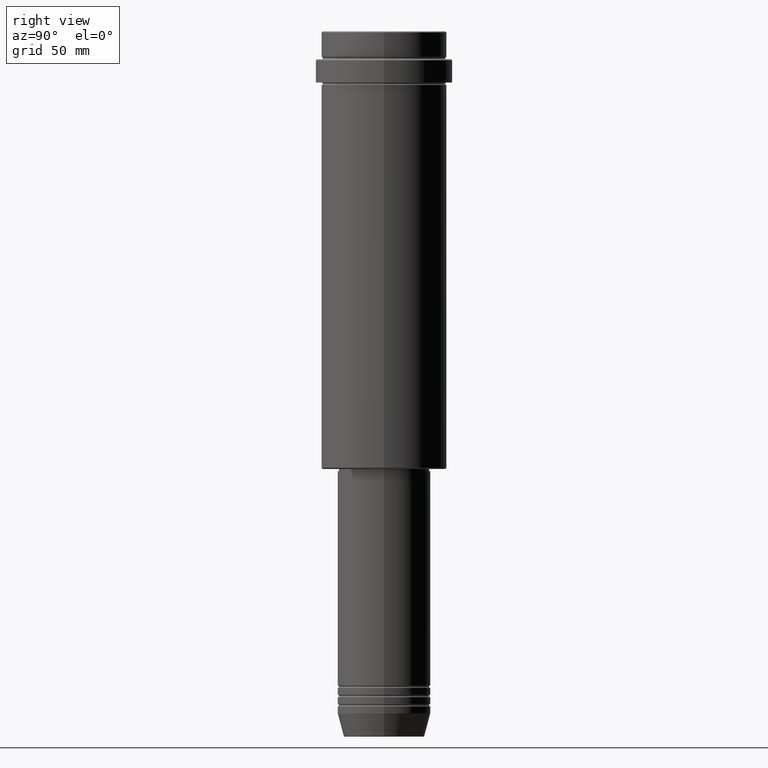
[diagram: clean part render]
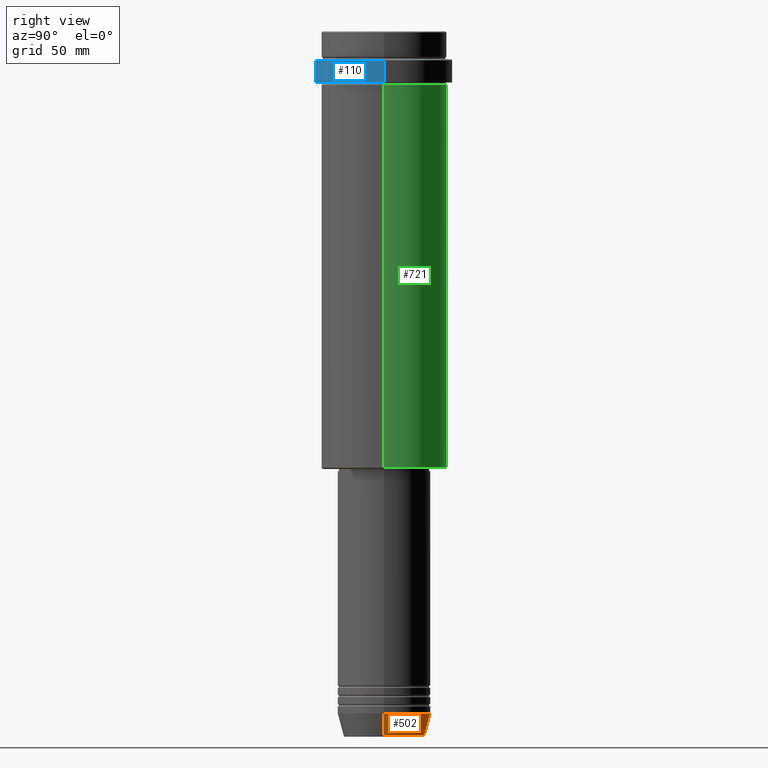
[diagram: same view with three faces highlighted in distinct colors, each labeled with its STEP entity id]
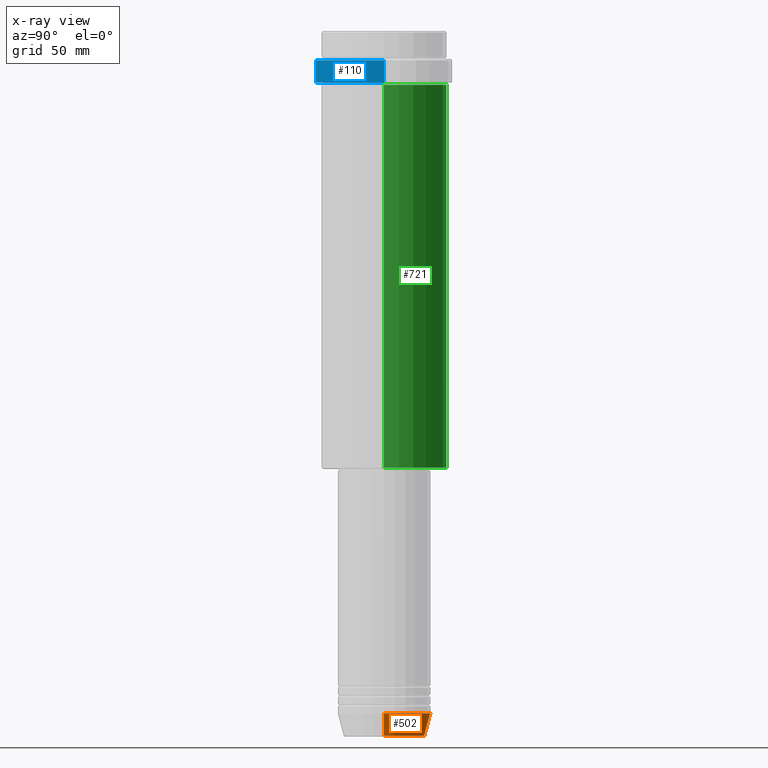
[diagram: x-ray of the same camera — body ghosted, the three highlighted faces saturated]
A machine part, right view with three faces highlighted in distinct colors.
The next image is the same camera in x-ray (body ghosted, the three faces saturated) — at least one of them is partly hidden behind the body in this view.
Their STEP definitions:

[orange] entity #502 — the highlighted conical surface has half-angle 15 deg.
#1 = CARTESIAN_POINT ( 'NONE',  ( -20.00000000000000000, 2.449293598294706513E-15, -293.0000000000000000 ) ) ;
#32 = FACE_OUTER_BOUND ( 'NONE', #483, .T. ) ;
#71 = DIRECTION ( 'NONE',  ( -0.000000000000000000, -0.000000000000000000, 1.000000000000000000 ) ) ;
#131 = ORIENTED_EDGE ( 'NONE', *, *, #1140, .T. ) ;
#153 = CARTESIAN_POINT ( 'NONE',  ( -20.00000000000000000, 2.449293598294706513E-15, -293.0000000000000000 ) ) ;
#157 = CIRCLE ( 'NONE', #1075, 20.00000000000000000 ) ;
#192 = CARTESIAN_POINT ( 'NONE',  ( 0.000000000000000000, 0.000000000000000000, -302.6294095225512137 ) ) ;
#193 = EDGE_CURVE ( 'NONE', #571, #680, #157, .T. ) ;
#228 = CIRCLE ( 'NONE', #1018, 17.41980749484382684 ) ;
#265 = LINE ( 'NONE', #153, #406 ) ;
#275 = LINE ( 'NONE', #823, #551 ) ;
#279 = CONICAL_SURFACE ( 'NONE', #1154, 20.00000000000000000, 0.2617993877991499074 ) ;
#295 = DIRECTION ( 'NONE',  ( 1.000000000000000000, 0.000000000000000000, 0.000000000000000000 ) ) ;
#406 = VECTOR ( 'NONE', #812, 1000.000000000000114 ) ;
#483 = EDGE_LOOP ( 'NONE', ( #131, #1043, #495, #530 ) ) ;
#495 = ORIENTED_EDGE ( 'NONE', *, *, #193, .F. ) ;
#502 = ADVANCED_FACE ( 'NONE', ( #32 ), #279, .T. ) ;
#530 = ORIENTED_EDGE ( 'NONE', *, *, #915, .F. ) ;
#551 = VECTOR ( 'NONE', #1165, 1000.000000000000114 ) ;
#571 = VERTEX_POINT ( 'NONE', #1246 ) ;
#595 = CARTESIAN_POINT ( 'NONE',  ( 17.41980749484382684, 0.000000000000000000, -302.6294095225512137 ) ) ;
#649 = VERTEX_POINT ( 'NONE', #743 ) ;
#680 = VERTEX_POINT ( 'NONE', #1 ) ;
#743 = CARTESIAN_POINT ( 'NONE',  ( -17.41980749484382684, 2.291302373663531915E-15, -302.6294095225512137 ) ) ;
#812 = DIRECTION ( 'NONE',  ( -0.2588190451025211836, 3.169619151431770488E-17, 0.9659258262890680902 ) ) ;
#823 = CARTESIAN_POINT ( 'NONE',  ( 20.00000000000000000, 0.000000000000000000, -293.0000000000000000 ) ) ;
#830 = DIRECTION ( 'NONE',  ( -0.000000000000000000, -0.000000000000000000, 1.000000000000000000 ) ) ;
#913 = CARTESIAN_POINT ( 'NONE',  ( 0.000000000000000000, 0.000000000000000000, -293.0000000000000000 ) ) ;
#915 = EDGE_CURVE ( 'NONE', #981, #571, #275, .T. ) ;
#970 = CARTESIAN_POINT ( 'NONE',  ( 0.000000000000000000, 0.000000000000000000, -293.0000000000000000 ) ) ;
#981 = VERTEX_POINT ( 'NONE', #595 ) ;
#1018 = AXIS2_PLACEMENT_3D ( 'NONE', #192, #830, #295 ) ;
#1043 = ORIENTED_EDGE ( 'NONE', *, *, #1379, .T. ) ;
#1075 = AXIS2_PLACEMENT_3D ( 'NONE', #970, #1079, #1402 ) ;
#1079 = DIRECTION ( 'NONE',  ( -0.000000000000000000, -0.000000000000000000, 1.000000000000000000 ) ) ;
#1135 = DIRECTION ( 'NONE',  ( 1.000000000000000000, 0.000000000000000000, 0.000000000000000000 ) ) ;
#1140 = EDGE_CURVE ( 'NONE', #981, #649, #228, .T. ) ;
#1154 = AXIS2_PLACEMENT_3D ( 'NONE', #913, #71, #1135 ) ;
#1165 = DIRECTION ( 'NONE',  ( 0.2588190451025211836, 0.000000000000000000, 0.9659258262890680902 ) ) ;
#1246 = CARTESIAN_POINT ( 'NONE',  ( 20.00000000000000000, 0.000000000000000000, -293.0000000000000000 ) ) ;
#1379 = EDGE_CURVE ( 'NONE', #649, #680, #265, .T. ) ;
#1402 = DIRECTION ( 'NONE',  ( 1.000000000000000000, 0.000000000000000000, 0.000000000000000000 ) ) ;

[blue] entity #110 — the highlighted cylindrical surface (partial cylindrical patch) has radius 29.5 mm, axis along (-0, -0, 1).
#4 = AXIS2_PLACEMENT_3D ( 'NONE', #148, #1042, #687 ) ;
#73 = VERTEX_POINT ( 'NONE', #969 ) ;
#92 = DIRECTION ( 'NONE',  ( -0.000000000000000000, -0.000000000000000000, 1.000000000000000000 ) ) ;
#101 = FACE_OUTER_BOUND ( 'NONE', #1096, .T. ) ;
#110 = ADVANCED_FACE ( 'NONE', ( #101 ), #982, .T. ) ;
#126 = DIRECTION ( 'NONE',  ( 1.000000000000000000, 0.000000000000000000, 0.000000000000000000 ) ) ;
#148 = CARTESIAN_POINT ( 'NONE',  ( 0.000000000000000000, 0.000000000000000000, -22.00000000000000711 ) ) ;
#186 = CARTESIAN_POINT ( 'NONE',  ( 29.50000000000000000, 0.000000000000000000, -12.49999999999994849 ) ) ;
#222 = DIRECTION ( 'NONE',  ( 1.000000000000000000, 0.000000000000000000, 0.000000000000000000 ) ) ;
#230 = DIRECTION ( 'NONE',  ( 0.000000000000000000, 0.000000000000000000, -1.000000000000000000 ) ) ;
#282 = AXIS2_PLACEMENT_3D ( 'NONE', #1225, #230, #126 ) ;
#289 = ORIENTED_EDGE ( 'NONE', *, *, #1317, .T. ) ;
#307 = ORIENTED_EDGE ( 'NONE', *, *, #1177, .F. ) ;
#393 = VERTEX_POINT ( 'NONE', #833 ) ;
#477 = ORIENTED_EDGE ( 'NONE', *, *, #1337, .T. ) ;
#527 = VECTOR ( 'NONE', #1004, 1000.000000000000000 ) ;
#687 = DIRECTION ( 'NONE',  ( 1.000000000000000000, 0.000000000000000000, 0.000000000000000000 ) ) ;
#754 = CARTESIAN_POINT ( 'NONE',  ( 0.000000000000000000, 0.000000000000000000, 0.000000000000000000 ) ) ;
#801 = CARTESIAN_POINT ( 'NONE',  ( 29.50000000000000000, 0.000000000000000000, 0.000000000000000000 ) ) ;
#833 = CARTESIAN_POINT ( 'NONE',  ( 29.49999999999999645, 0.000000000000000000, -22.00000000000000711 ) ) ;
#953 = ORIENTED_EDGE ( 'NONE', *, *, #1229, .T. ) ;
#958 = AXIS2_PLACEMENT_3D ( 'NONE', #754, #92, #222 ) ;
#965 = CIRCLE ( 'NONE', #282, 29.50000000000000000 ) ;
#969 = CARTESIAN_POINT ( 'NONE',  ( -29.49999999999999645, 3.612708057484690815E-15, -22.00000000000000711 ) ) ;
#982 = CYLINDRICAL_SURFACE ( 'NONE', #958, 29.50000000000000000 ) ;
#1004 = DIRECTION ( 'NONE',  ( -0.000000000000000000, -0.000000000000000000, 1.000000000000000000 ) ) ;
#1042 = DIRECTION ( 'NONE',  ( -0.000000000000000000, -0.000000000000000000, 1.000000000000000000 ) ) ;
#1089 = VERTEX_POINT ( 'NONE', #186 ) ;
#1096 = EDGE_LOOP ( 'NONE', ( #307, #477, #289, #953 ) ) ;
#1113 = LINE ( 'NONE', #1320, #527 ) ;
#1158 = VECTOR ( 'NONE', #1261, 1000.000000000000000 ) ;
#1177 = EDGE_CURVE ( 'NONE', #73, #1251, #1113, .T. ) ;
#1225 = CARTESIAN_POINT ( 'NONE',  ( 0.000000000000000000, 0.000000000000000000, -12.49999999999994849 ) ) ;
#1229 = EDGE_CURVE ( 'NONE', #1089, #1251, #965, .T. ) ;
#1235 = LINE ( 'NONE', #801, #1158 ) ;
#1251 = VERTEX_POINT ( 'NONE', #1343 ) ;
#1261 = DIRECTION ( 'NONE',  ( -0.000000000000000000, -0.000000000000000000, 1.000000000000000000 ) ) ;
#1314 = CIRCLE ( 'NONE', #4, 29.49999999999999645 ) ;
#1317 = EDGE_CURVE ( 'NONE', #393, #1089, #1235, .T. ) ;
#1320 = CARTESIAN_POINT ( 'NONE',  ( -29.50000000000000000, 3.612708057484691604E-15, 0.000000000000000000 ) ) ;
#1337 = EDGE_CURVE ( 'NONE', #73, #393, #1314, .T. ) ;
#1343 = CARTESIAN_POINT ( 'NONE',  ( -29.50000000000000000, 3.612708057484691604E-15, -12.49999999999994849 ) ) ;

[green] entity #721 — the highlighted cylindrical surface (partial cylindrical patch) has radius 27 mm, axis along (-0, -0, 1).
#9 = EDGE_CURVE ( 'NONE', #272, #1048, #648, .T. ) ;
#25 = VECTOR ( 'NONE', #1369, 1000.000000000000000 ) ;
#113 = DIRECTION ( 'NONE',  ( 1.000000000000000000, 0.000000000000000000, 0.000000000000000000 ) ) ;
#129 = VERTEX_POINT ( 'NONE', #1411 ) ;
#145 = DIRECTION ( 'NONE',  ( -0.000000000000000000, -0.000000000000000000, 1.000000000000000000 ) ) ;
#159 = DIRECTION ( 'NONE',  ( -1.000000000000000000, 0.000000000000000000, 0.000000000000000000 ) ) ;
#182 = CYLINDRICAL_SURFACE ( 'NONE', #1308, 27.00000000000000355 ) ;
#272 = VERTEX_POINT ( 'NONE', #531 ) ;
#273 = CARTESIAN_POINT ( 'NONE',  ( -27.00000000000000355, 3.306546357697854128E-15, -187.5000000000000284 ) ) ;
#281 = VECTOR ( 'NONE', #871, 1000.000000000000000 ) ;
#383 = CIRCLE ( 'NONE', #1263, 27.00000000000000355 ) ;
#418 = DIRECTION ( 'NONE',  ( -0.000000000000000000, -0.000000000000000000, 1.000000000000000000 ) ) ;
#440 = ORIENTED_EDGE ( 'NONE', *, *, #597, .F. ) ;
#512 = CARTESIAN_POINT ( 'NONE',  ( 0.000000000000000000, 0.000000000000000000, 0.000000000000000000 ) ) ;
#531 = CARTESIAN_POINT ( 'NONE',  ( 27.00000000000000355, 0.000000000000000000, -187.5000000000000284 ) ) ;
#537 = FACE_OUTER_BOUND ( 'NONE', #746, .T. ) ;
#597 = EDGE_CURVE ( 'NONE', #1048, #129, #383, .T. ) ;
#613 = CARTESIAN_POINT ( 'NONE',  ( 27.00000000000000355, 0.000000000000000000, -23.00000000000001421 ) ) ;
#648 = LINE ( 'NONE', #1327, #281 ) ;
#669 = ORIENTED_EDGE ( 'NONE', *, *, #9, .F. ) ;
#703 = DIRECTION ( 'NONE',  ( -0.000000000000000000, -0.000000000000000000, 1.000000000000000000 ) ) ;
#721 = ADVANCED_FACE ( 'NONE', ( #537 ), #182, .T. ) ;
#746 = EDGE_LOOP ( 'NONE', ( #858, #1334, #440, #669 ) ) ;
#775 = CARTESIAN_POINT ( 'NONE',  ( 0.000000000000000000, 0.000000000000000000, -23.00000000000001421 ) ) ;
#817 = CARTESIAN_POINT ( 'NONE',  ( -27.00000000000000355, 3.306546357697854128E-15, 0.000000000000000000 ) ) ;
#858 = ORIENTED_EDGE ( 'NONE', *, *, #1404, .T. ) ;
#860 = DIRECTION ( 'NONE',  ( 1.000000000000000000, 0.000000000000000000, 0.000000000000000000 ) ) ;
#871 = DIRECTION ( 'NONE',  ( -0.000000000000000000, -0.000000000000000000, 1.000000000000000000 ) ) ;
#968 = CIRCLE ( 'NONE', #1270, 27.00000000000000355 ) ;
#977 = VERTEX_POINT ( 'NONE', #273 ) ;
#1048 = VERTEX_POINT ( 'NONE', #613 ) ;
#1151 = CARTESIAN_POINT ( 'NONE',  ( 0.000000000000000000, 0.000000000000000000, -187.5000000000000284 ) ) ;
#1263 = AXIS2_PLACEMENT_3D ( 'NONE', #775, #145, #113 ) ;
#1270 = AXIS2_PLACEMENT_3D ( 'NONE', #1151, #703, #159 ) ;
#1273 = EDGE_CURVE ( 'NONE', #977, #129, #1313, .T. ) ;
#1308 = AXIS2_PLACEMENT_3D ( 'NONE', #512, #418, #860 ) ;
#1313 = LINE ( 'NONE', #817, #25 ) ;
#1327 = CARTESIAN_POINT ( 'NONE',  ( 27.00000000000000355, 0.000000000000000000, 0.000000000000000000 ) ) ;
#1334 = ORIENTED_EDGE ( 'NONE', *, *, #1273, .T. ) ;
#1369 = DIRECTION ( 'NONE',  ( -0.000000000000000000, -0.000000000000000000, 1.000000000000000000 ) ) ;
#1404 = EDGE_CURVE ( 'NONE', #272, #977, #968, .T. ) ;
#1411 = CARTESIAN_POINT ( 'NONE',  ( -27.00000000000000355, 3.306546357697854128E-15, -23.00000000000001421 ) ) ;